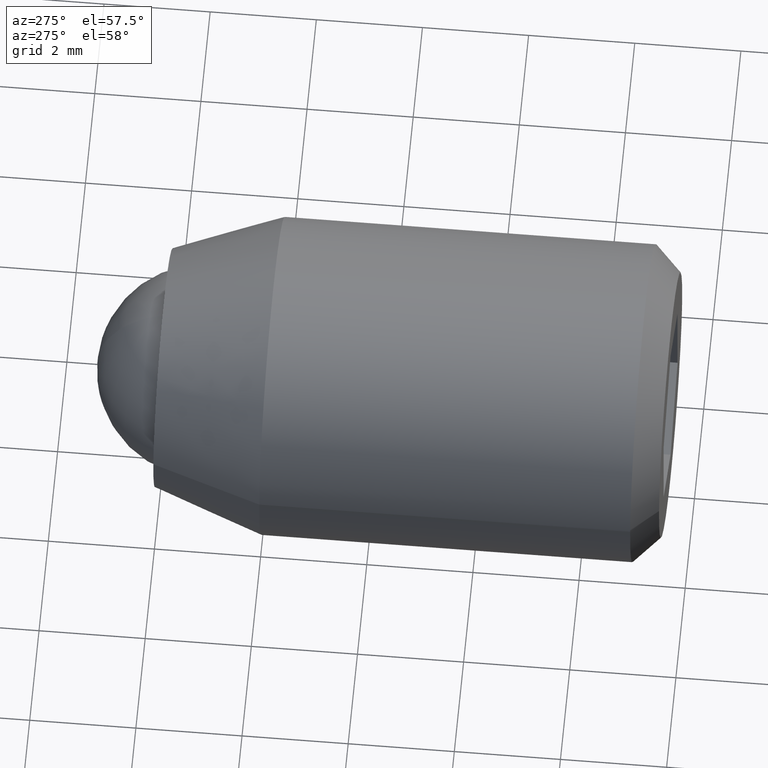
[diagram: clean part render]
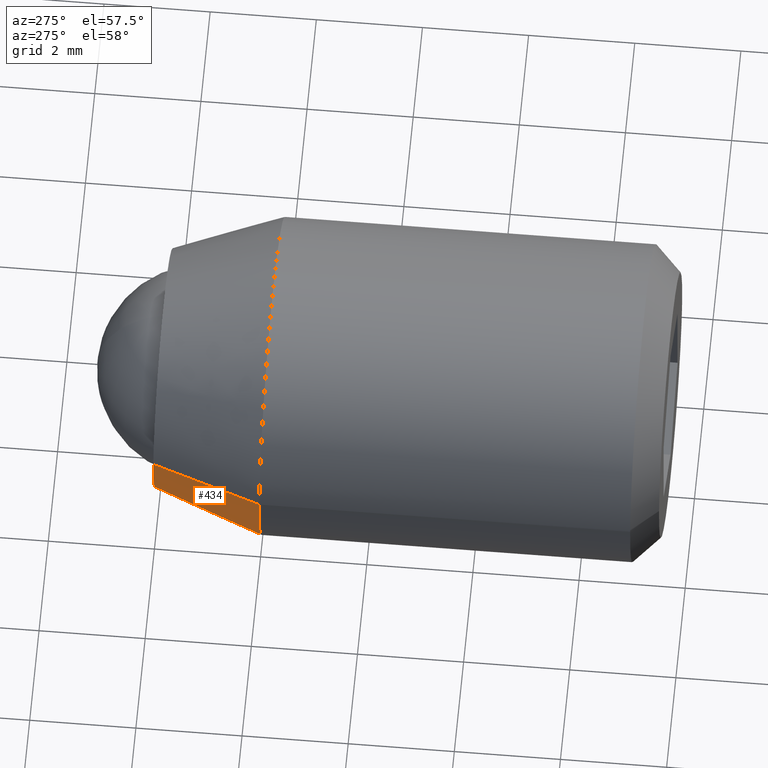
[diagram: same view with one face highlighted and labeled with its STEP entity id]
A machine part, auxiliary view. The second image highlights one B-rep face of the part: STEP entity #434.
In plain terms, the highlighted face is a freeform B-spline surface patch.
Its self-contained STEP definition (entity closure, byte-faithful):
#260=CARTESIAN_POINT('',(-1.824690539183465,-1.269605E-013,-1.316436263635491));
#261=VERTEX_POINT('',#260);
#294=CARTESIAN_POINT('',(-2.245803296449229,-8.940522E-013,0.137359213958318));
#295=VERTEX_POINT('',#294);
#309=CARTESIAN_POINT('',(-2.994404426727895,-2.060607999420808,0.183145100744531));
#310=VERTEX_POINT('',#309);
#311=CARTESIAN_POINT('',(-2.245803296449229,-8.940522E-013,0.137359213958318));
#312=CARTESIAN_POINT('',(-2.994404426727895,-2.060607999420808,0.183145100744531));
#313=QUASI_UNIFORM_CURVE('',1,(#311,#312),.UNSPECIFIED.,.F.,.U.);
#314=EDGE_CURVE('',#295,#310,#313,.T.);
#363=CARTESIAN_POINT('',(-2.432920718911957,-2.060608000000046,-1.755248351512978));
#364=VERTEX_POINT('',#363);
#378=CARTESIAN_POINT('',(-1.824690539183465,-1.269605E-013,-1.316436263635491));
#379=CARTESIAN_POINT('',(-2.432920718911957,-2.060608000000046,-1.755248351512978));
#380=QUASI_UNIFORM_CURVE('',1,(#378,#379),.UNSPECIFIED.,.F.,.U.);
#381=EDGE_CURVE('',#261,#364,#380,.T.);
#386=CARTESIAN_POINT('',(-2.227088268978793,0.051515200000000,0.136214553837149));
#387=CARTESIAN_POINT('',(-2.275737919450327,0.051515200000000,-0.659200200335204));
#388=CARTESIAN_POINT('',(-1.809484784690957,0.051515200000000,-1.305465961437498));
#389=CARTESIAN_POINT('',(-3.013587298422770,-2.113411080000000,0.184318895223756));
#390=CARTESIAN_POINT('',(-3.079417634281416,-2.113411080000001,-0.891997582008202));
#391=CARTESIAN_POINT('',(-2.448506617267739,-2.113411079999999,-1.766492911264477));
#399=(BOUNDED_SURFACE()B_SPLINE_SURFACE(2,1,((#386,#389),(#387,#390),(#388,#391)),.UNSPECIFIED.,.F.,.F.,.U.)B_SPLINE_SURFACE_WITH_KNOTS((3,3),(2,2),(0.0,2.195633741882185),(0.0,2.303866434672634),.UNSPECIFIED.)GEOMETRIC_REPRESENTATION_ITEM()RATIONAL_B_SPLINE_SURFACE(((1.0,1.0),(0.871126983722081,0.871126983722081),(0.855662221768731,0.855662221768731)))REPRESENTATION_ITEM('')SURFACE());
#400=CARTESIAN_POINT('',(-2.245803296449229,-8.940522E-013,0.137359213958318));
#401=CARTESIAN_POINT('',(-2.250000000000001,0.0,0.068743717426708));
#402=CARTESIAN_POINT('',(-2.250000000000000,0.0,-6.765950E-016));
#403=CARTESIAN_POINT('',(-2.250000000000000,0.0,-0.726921852027605));
#404=CARTESIAN_POINT('',(-1.824690539183465,-1.269605E-013,-1.316436263635491));
#412=(BOUNDED_CURVE()B_SPLINE_CURVE(2,(#400,#401,#402,#403,#404),.UNSPECIFIED.,.F.,.U.)B_SPLINE_CURVE_WITH_KNOTS((3,2,3),(0.739332962241220,0.750000000000000,0.850743050382166),.UNSPECIFIED.)CURVE()GEOMETRIC_REPRESENTATION_ITEM()RATIONAL_B_SPLINE_CURVE((0.976072041671598,0.987502787902505,1.0,0.881972174801926,0.859068214727269))REPRESENTATION_ITEM(''));
#413=EDGE_CURVE('',#295,#261,#412,.T.);
#414=ORIENTED_EDGE('',*,*,#413,.T.);
#415=ORIENTED_EDGE('',*,*,#381,.T.);
#416=CARTESIAN_POINT('',(-2.994404426727895,-2.060607999420808,0.183145100744531));
#417=CARTESIAN_POINT('',(-3.000000000000000,-2.060608000000000,0.091658030246191));
#418=CARTESIAN_POINT('',(-3.0,-2.060608000000000,-6.765950E-016));
#419=CARTESIAN_POINT('',(-3.000000000000000,-2.060608000000000,-0.969229136035489));
#420=CARTESIAN_POINT('',(-2.432920718911956,-2.060608000000046,-1.755248351512978));
#428=(BOUNDED_CURVE()B_SPLINE_CURVE(2,(#416,#417,#418,#419,#420),.UNSPECIFIED.,.F.,.U.)B_SPLINE_CURVE_WITH_KNOTS((3,2,3),(0.739332992081915,0.750000000000000,0.850743050382045),.UNSPECIFIED.)CURVE()GEOMETRIC_REPRESENTATION_ITEM()RATIONAL_B_SPLINE_CURVE((0.976072105625896,0.987502822863054,1.0,0.881972174802068,0.859068214727324))REPRESENTATION_ITEM(''));
#429=EDGE_CURVE('',#310,#364,#428,.T.);
#430=ORIENTED_EDGE('',*,*,#429,.F.);
#431=ORIENTED_EDGE('',*,*,#314,.F.);
#432=EDGE_LOOP('',(#414,#415,#430,#431));
#433=FACE_OUTER_BOUND('',#432,.T.);
#434=ADVANCED_FACE('',(#433),#399,.T.);